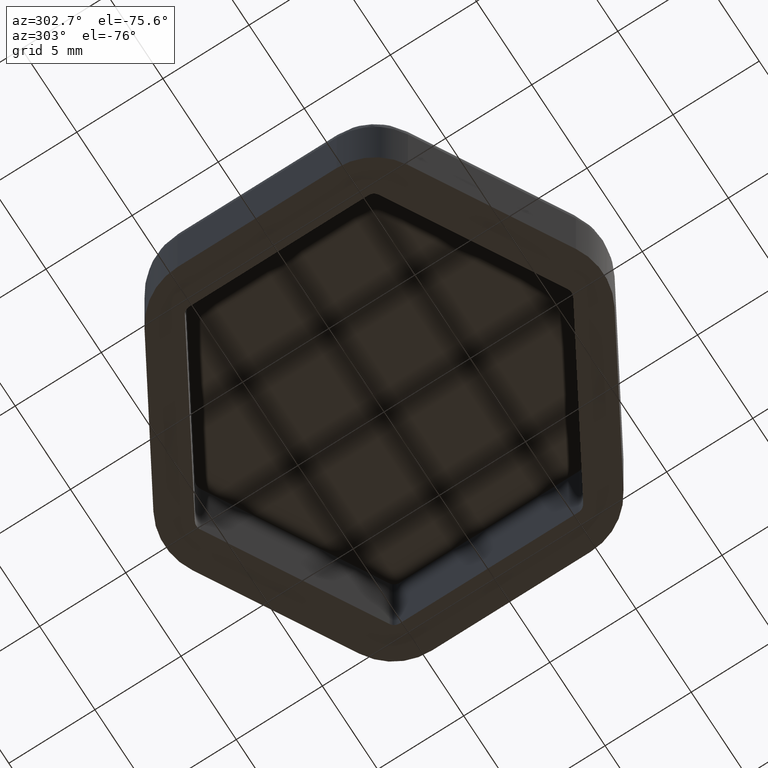
[diagram: clean part render]
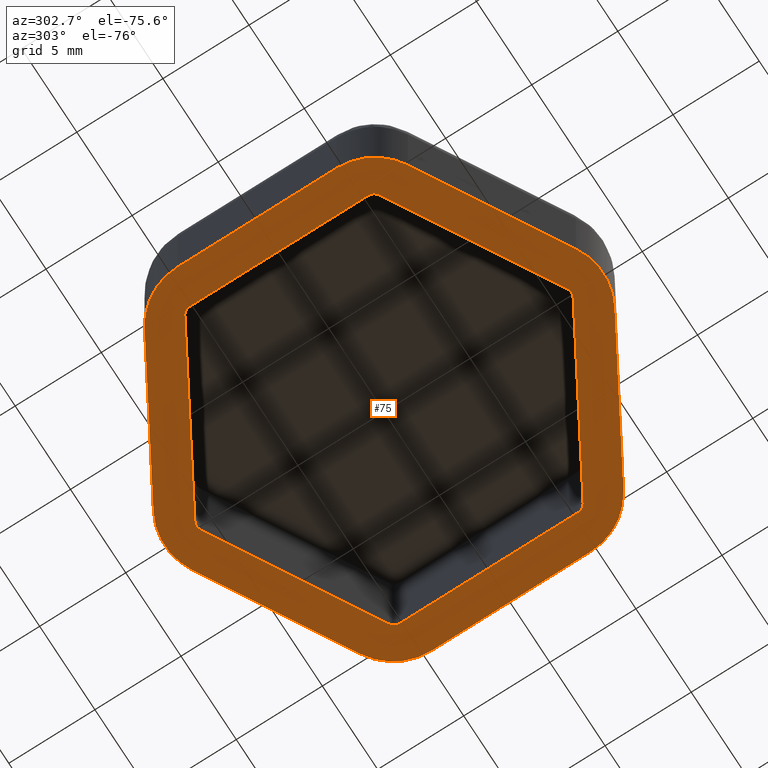
[diagram: same view with one face highlighted and labeled with its STEP entity id]
A machine part, auxiliary view. The second image highlights one B-rep face of the part: STEP entity #75.
In plain terms, the highlighted planar face has unit normal (0, 0, -1).
Its self-contained STEP definition (entity closure, byte-faithful):
#75 = ADVANCED_FACE( '', ( #115, #116 ), #117, .T. );
#115 = FACE_OUTER_BOUND( '', #194, .T. );
#116 = FACE_BOUND( '', #195, .T. );
#117 = PLANE( '', #196 );
#194 = EDGE_LOOP( '', ( #957, #958, #959, #960, #961, #962, #963, #964, #965, #966, #967, #968 ) );
#195 = EDGE_LOOP( '', ( #969, #970, #971, #972, #973, #974, #975, #976, #977, #978, #979, #980 ) );
#196 = AXIS2_PLACEMENT_3D( '', #981, #982, #983 );
#957 = ORIENTED_EDGE( '', *, *, #1236, .T. );
#958 = ORIENTED_EDGE( '', *, *, #1237, .T. );
#959 = ORIENTED_EDGE( '', *, *, #1238, .T. );
#960 = ORIENTED_EDGE( '', *, *, #1239, .T. );
#961 = ORIENTED_EDGE( '', *, *, #1240, .T. );
#962 = ORIENTED_EDGE( '', *, *, #1241, .T. );
#963 = ORIENTED_EDGE( '', *, *, #1242, .T. );
#964 = ORIENTED_EDGE( '', *, *, #1243, .T. );
#965 = ORIENTED_EDGE( '', *, *, #1244, .T. );
#966 = ORIENTED_EDGE( '', *, *, #1245, .T. );
#967 = ORIENTED_EDGE( '', *, *, #1246, .T. );
#968 = ORIENTED_EDGE( '', *, *, #1247, .T. );
#969 = ORIENTED_EDGE( '', *, *, #1248, .T. );
#970 = ORIENTED_EDGE( '', *, *, #1249, .T. );
#971 = ORIENTED_EDGE( '', *, *, #1250, .T. );
#972 = ORIENTED_EDGE( '', *, *, #1251, .T. );
#973 = ORIENTED_EDGE( '', *, *, #1252, .T. );
#974 = ORIENTED_EDGE( '', *, *, #1253, .T. );
#975 = ORIENTED_EDGE( '', *, *, #1254, .T. );
#976 = ORIENTED_EDGE( '', *, *, #1255, .T. );
#977 = ORIENTED_EDGE( '', *, *, #1256, .T. );
#978 = ORIENTED_EDGE( '', *, *, #1257, .T. );
#979 = ORIENTED_EDGE( '', *, *, #1258, .T. );
#980 = ORIENTED_EDGE( '', *, *, #1259, .T. );
#981 = CARTESIAN_POINT( '', ( -8.00000000000000, 4.61880215351701, -9.79685083057902E-016 ) );
#982 = DIRECTION( '', ( 1.22460635382238E-016, 6.46234853557054E-033, -1.00000000000000 ) );
#983 = DIRECTION( '', ( -0.500000000000000, 0.866025403784439, -6.12303176911189E-017 ) );
#1236 = EDGE_CURVE( '', #1326, #1327, #1328, .T. );
#1237 = EDGE_CURVE( '', #1327, #1329, #1330, .T. );
#1238 = EDGE_CURVE( '', #1329, #1331, #1332, .T. );
#1239 = EDGE_CURVE( '', #1331, #1333, #1334, .T. );
#1240 = EDGE_CURVE( '', #1333, #1335, #1336, .T. );
#1241 = EDGE_CURVE( '', #1335, #1337, #1338, .T. );
#1242 = EDGE_CURVE( '', #1337, #1339, #1340, .T. );
#1243 = EDGE_CURVE( '', #1339, #1341, #1342, .T. );
#1244 = EDGE_CURVE( '', #1341, #1343, #1344, .T. );
#1245 = EDGE_CURVE( '', #1343, #1345, #1346, .T. );
#1246 = EDGE_CURVE( '', #1345, #1347, #1348, .T. );
#1247 = EDGE_CURVE( '', #1347, #1326, #1349, .T. );
#1248 = EDGE_CURVE( '', #1350, #1351, #1352, .T. );
#1249 = EDGE_CURVE( '', #1351, #1353, #1354, .F. );
#1250 = EDGE_CURVE( '', #1353, #1355, #1356, .T. );
#1251 = EDGE_CURVE( '', #1355, #1357, #1358, .F. );
#1252 = EDGE_CURVE( '', #1357, #1359, #1360, .T. );
#1253 = EDGE_CURVE( '', #1359, #1361, #1362, .F. );
#1254 = EDGE_CURVE( '', #1361, #1363, #1364, .T. );
#1255 = EDGE_CURVE( '', #1363, #1365, #1366, .F. );
#1256 = EDGE_CURVE( '', #1365, #1367, #1368, .T. );
#1257 = EDGE_CURVE( '', #1367, #1369, #1370, .F. );
#1258 = EDGE_CURVE( '', #1369, #1371, #1372, .T. );
#1259 = EDGE_CURVE( '', #1371, #1350, #1373, .F. );
#1326 = VERTEX_POINT( '', #1470 );
#1327 = VERTEX_POINT( '', #1471 );
#1328 = CIRCLE( '', #1472, 3.50000000000000 );
#1329 = VERTEX_POINT( '', #1473 );
#1330 = LINE( '', #1474, #1475 );
#1331 = VERTEX_POINT( '', #1476 );
#1332 = CIRCLE( '', #1477, 3.50000000000000 );
#1333 = VERTEX_POINT( '', #1478 );
#1334 = LINE( '', #1479, #1480 );
#1335 = VERTEX_POINT( '', #1481 );
#1336 = CIRCLE( '', #1482, 3.50000000000000 );
#1337 = VERTEX_POINT( '', #1483 );
#1338 = LINE( '', #1484, #1485 );
#1339 = VERTEX_POINT( '', #1486 );
#1340 = CIRCLE( '', #1487, 3.50000000000000 );
#1341 = VERTEX_POINT( '', #1488 );
#1342 = LINE( '', #1489, #1490 );
#1343 = VERTEX_POINT( '', #1491 );
#1344 = CIRCLE( '', #1492, 3.50000000000000 );
#1345 = VERTEX_POINT( '', #1493 );
#1346 = LINE( '', #1494, #1495 );
#1347 = VERTEX_POINT( '', #1496 );
#1348 = CIRCLE( '', #1497, 3.50000000000000 );
#1349 = LINE( '', #1498, #1499 );
#1350 = VERTEX_POINT( '', #1500 );
#1351 = VERTEX_POINT( '', #1501 );
#1352 = LINE( '', #1502, #1503 );
#1353 = VERTEX_POINT( '', #1504 );
#1354 = CIRCLE( '', #1505, 0.500000000000002 );
#1355 = VERTEX_POINT( '', #1506 );
#1356 = LINE( '', #1507, #1508 );
#1357 = VERTEX_POINT( '', #1509 );
#1358 = CIRCLE( '', #1510, 0.500000000000002 );
#1359 = VERTEX_POINT( '', #1511 );
#1360 = LINE( '', #1512, #1513 );
#1361 = VERTEX_POINT( '', #1514 );
#1362 = CIRCLE( '', #1515, 0.500000000000000 );
#1363 = VERTEX_POINT( '', #1516 );
#1364 = LINE( '', #1517, #1518 );
#1365 = VERTEX_POINT( '', #1519 );
#1366 = CIRCLE( '', #1520, 0.499999999999999 );
#1367 = VERTEX_POINT( '', #1521 );
#1368 = LINE( '', #1522, #1523 );
#1369 = VERTEX_POINT( '', #1524 );
#1370 = CIRCLE( '', #1525, 0.499999999999999 );
#1371 = VERTEX_POINT( '', #1526 );
#1372 = LINE( '', #1527, #1528 );
#1373 = CIRCLE( '', #1529, 0.499999999999999 );
#1470 = CARTESIAN_POINT( '', ( -11.5000000000000, 4.61880215351701, -1.40829730689573E-015 ) );
#1471 = CARTESIAN_POINT( '', ( -9.75000000000000, 7.64989106676254, -1.19399119497682E-015 ) );
#1472 = AXIS2_PLACEMENT_3D( '', #1668, #1669, #1670 );
#1473 = CARTESIAN_POINT( '', ( -1.75000000000000, 12.2686932202795, -2.14306111918916E-016 ) );
#1474 = CARTESIAN_POINT( '', ( -9.75000000000000, 7.64989106676254, -1.19399119497682E-015 ) );
#1475 = VECTOR( '', #1671, 1000.00000000000 );
#1476 = CARTESIAN_POINT( '', ( 1.74999999999999, 12.2686932202796, 2.14306111918915E-016 ) );
#1477 = AXIS2_PLACEMENT_3D( '', #1672, #1673, #1674 );
#1478 = CARTESIAN_POINT( '', ( 9.74999999999999, 7.64989106676255, 1.19399119497682E-015 ) );
#1479 = CARTESIAN_POINT( '', ( 1.75000000000000, 12.2686932202796, 2.14306111918916E-016 ) );
#1480 = VECTOR( '', #1675, 1000.00000000000 );
#1481 = CARTESIAN_POINT( '', ( 11.5000000000000, 4.61880215351701, 1.40829730689573E-015 ) );
#1482 = AXIS2_PLACEMENT_3D( '', #1676, #1677, #1678 );
#1483 = CARTESIAN_POINT( '', ( 11.5000000000000, -4.61880215351699, 1.40829730689573E-015 ) );
#1484 = CARTESIAN_POINT( '', ( 11.5000000000000, 4.61880215351701, 1.40829730689573E-015 ) );
#1485 = VECTOR( '', #1679, 1000.00000000000 );
#1486 = CARTESIAN_POINT( '', ( 9.74999999999999, -7.64989106676253, 1.19399119497682E-015 ) );
#1487 = AXIS2_PLACEMENT_3D( '', #1680, #1681, #1682 );
#1488 = CARTESIAN_POINT( '', ( 1.74999999999999, -12.2686932202795, 2.14306111918915E-016 ) );
#1489 = CARTESIAN_POINT( '', ( 9.74999999999999, -7.64989106676253, 1.19399119497682E-015 ) );
#1490 = VECTOR( '', #1683, 1000.00000000000 );
#1491 = CARTESIAN_POINT( '', ( -1.75000000000000, -12.2686932202795, -2.14306111918916E-016 ) );
#1492 = AXIS2_PLACEMENT_3D( '', #1684, #1685, #1686 );
#1493 = CARTESIAN_POINT( '', ( -9.75000000000001, -7.64989106676254, -1.19399119497682E-015 ) );
#1494 = CARTESIAN_POINT( '', ( -1.75000000000001, -12.2686932202795, -2.14306111918917E-016 ) );
#1495 = VECTOR( '', #1687, 1000.00000000000 );
#1496 = CARTESIAN_POINT( '', ( -11.5000000000000, -4.61880215351700, -1.40829730689573E-015 ) );
#1497 = AXIS2_PLACEMENT_3D( '', #1688, #1689, #1690 );
#1498 = CARTESIAN_POINT( '', ( -11.5000000000000, -4.61880215351700, -1.40829730689573E-015 ) );
#1499 = VECTOR( '', #1691, 1000.00000000000 );
#1500 = CARTESIAN_POINT( '', ( -0.250000000000000, 10.8253175473055, -3.06151588455595E-017 ) );
#1501 = CARTESIAN_POINT( '', ( -9.25000000000000, 5.62916512459885, -1.13276087728570E-015 ) );
#1502 = CARTESIAN_POINT( '', ( -8.75000000000000, 5.91784025919367, -1.07153055959458E-015 ) );
#1503 = VECTOR( '', #1692, 1000.00000000000 );
#1504 = CARTESIAN_POINT( '', ( -9.50000000000000, 5.19615242270664, -1.16337603613126E-015 ) );
#1505 = AXIS2_PLACEMENT_3D( '', #1693, #1694, #1695 );
#1506 = CARTESIAN_POINT( '', ( -9.50000000000000, -5.19615242270663, -1.16337603613126E-015 ) );
#1507 = CARTESIAN_POINT( '', ( -9.50000000000000, 4.61880215351701, -1.16337603613126E-015 ) );
#1508 = VECTOR( '', #1696, 1000.00000000000 );
#1509 = CARTESIAN_POINT( '', ( -9.25000000000000, -5.62916512459886, -1.13276087728570E-015 ) );
#1510 = AXIS2_PLACEMENT_3D( '', #1697, #1698, #1699 );
#1511 = CARTESIAN_POINT( '', ( -0.249999999999999, -10.8253175473055, -3.06151588455592E-017 ) );
#1512 = CARTESIAN_POINT( '', ( -12.7500000000000, -3.60843918243517, -1.56137310112353E-015 ) );
#1513 = VECTOR( '', #1700, 1000.00000000000 );
#1514 = CARTESIAN_POINT( '', ( 0.250000000000005, -10.8253175473055, 3.06151588455601E-017 ) );
#1515 = AXIS2_PLACEMENT_3D( '', #1701, #1702, #1703 );
#1516 = CARTESIAN_POINT( '', ( 9.25000000000000, -5.62916512459885, 1.13276087728570E-015 ) );
#1517 = CARTESIAN_POINT( '', ( 0.750000000000001, -10.5366424127107, 9.18454765366784E-017 ) );
#1518 = VECTOR( '', #1704, 1000.00000000000 );
#1519 = CARTESIAN_POINT( '', ( 9.50000000000000, -5.19615242270663, 1.16337603613126E-015 ) );
#1520 = AXIS2_PLACEMENT_3D( '', #1705, #1706, #1707 );
#1521 = CARTESIAN_POINT( '', ( 9.50000000000000, 5.19615242270663, 1.16337603613126E-015 ) );
#1522 = CARTESIAN_POINT( '', ( 9.50000000000000, 4.61880215351701, 1.16337603613126E-015 ) );
#1523 = VECTOR( '', #1708, 1000.00000000000 );
#1524 = CARTESIAN_POINT( '', ( 9.25000000000000, 5.62916512459885, 1.13276087728570E-015 ) );
#1525 = AXIS2_PLACEMENT_3D( '', #1709, #1710, #1711 );
#1526 = CARTESIAN_POINT( '', ( 0.250000000000000, 10.8253175473055, 3.06151588455595E-017 ) );
#1527 = CARTESIAN_POINT( '', ( -3.25000000000001, 12.8460434894692, -3.97997064992273E-016 ) );
#1528 = VECTOR( '', #1712, 1000.00000000000 );
#1529 = AXIS2_PLACEMENT_3D( '', #1713, #1714, #1715 );
#1668 = CARTESIAN_POINT( '', ( -8.00000000000000, 4.61880215351701, -9.79685083057902E-016 ) );
#1669 = DIRECTION( '', ( 1.22460635382238E-016, 0.000000000000000, -1.00000000000000 ) );
#1670 = DIRECTION( '', ( -1.00000000000000, -5.55111512312578E-016, -1.22460635382238E-016 ) );
#1671 = DIRECTION( '', ( 0.866025403784439, 0.500000000000000, 1.06054021204601E-016 ) );
#1672 = CARTESIAN_POINT( '', ( -3.46944695195361E-015, 9.23760430703402, -4.24870678161208E-031 ) );
#1673 = DIRECTION( '', ( 1.22460635382238E-016, -8.04960107368382E-033, -1.00000000000000 ) );
#1674 = DIRECTION( '', ( -0.500000000000000, 0.866025403784439, -6.12303176911189E-017 ) );
#1675 = DIRECTION( '', ( 0.866025403784439, -0.500000000000000, 1.06054021204601E-016 ) );
#1676 = CARTESIAN_POINT( '', ( 8.00000000000000, 4.61880215351702, 9.79685083057901E-016 ) );
#1677 = DIRECTION( '', ( 1.22460635382238E-016, -8.04960107368379E-033, -1.00000000000000 ) );
#1678 = DIRECTION( '', ( 0.500000000000001, 0.866025403784438, 6.12303176911190E-017 ) );
#1679 = DIRECTION( '', ( -3.88578058618805E-016, -1.00000000000000, -4.75855159540553E-032 ) );
#1680 = CARTESIAN_POINT( '', ( 7.99999999999999, -4.61880215351699, 9.79685083057901E-016 ) );
#1681 = DIRECTION( '', ( 1.22460635382238E-016, 0.000000000000000, -1.00000000000000 ) );
#1682 = DIRECTION( '', ( 1.00000000000000, 0.000000000000000, 1.22460635382238E-016 ) );
#1683 = DIRECTION( '', ( -0.866025403784439, -0.500000000000000, -1.06054021204601E-016 ) );
#1684 = CARTESIAN_POINT( '', ( -6.93889390390723E-015, -9.23760430703400, -8.49741356322415E-031 ) );
#1685 = DIRECTION( '', ( 1.22460635382238E-016, 0.000000000000000, -1.00000000000000 ) );
#1686 = DIRECTION( '', ( 0.500000000000001, -0.866025403784438, 6.12303176911189E-017 ) );
#1687 = DIRECTION( '', ( -0.866025403784439, 0.499999999999999, -1.06054021204601E-016 ) );
#1688 = CARTESIAN_POINT( '', ( -8.00000000000000, -4.61880215351700, -9.79685083057902E-016 ) );
#1689 = DIRECTION( '', ( 1.22460635382238E-016, 0.000000000000000, -1.00000000000000 ) );
#1690 = DIRECTION( '', ( -0.500000000000000, -0.866025403784439, -6.12303176911189E-017 ) );
#1691 = DIRECTION( '', ( -5.55111512312578E-017, 1.00000000000000, -6.79793085057932E-033 ) );
#1692 = DIRECTION( '', ( -0.866025403784439, -0.500000000000000, -1.06054021204601E-016 ) );
#1693 = CARTESIAN_POINT( '', ( -9.00000000000000, 5.19615242270663, -1.10214571844014E-015 ) );
#1694 = DIRECTION( '', ( 1.22460635382238E-016, 0.000000000000000, -1.00000000000000 ) );
#1695 = DIRECTION( '', ( -1.00000000000000, 0.000000000000000, -1.22460635382238E-016 ) );
#1696 = DIRECTION( '', ( 3.88578058618805E-016, -1.00000000000000, 4.75855159540552E-032 ) );
#1697 = CARTESIAN_POINT( '', ( -9.00000000000000, -5.19615242270664, -1.10214571844014E-015 ) );
#1698 = DIRECTION( '', ( 1.22460635382238E-016, 0.000000000000000, -1.00000000000000 ) );
#1699 = DIRECTION( '', ( -1.00000000000000, 0.000000000000000, -1.22460635382238E-016 ) );
#1700 = DIRECTION( '', ( 0.866025403784439, -0.500000000000000, 1.06054021204601E-016 ) );
#1701 = CARTESIAN_POINT( '', ( 1.73472347597681E-015, -10.3923048454133, 2.12435339080604E-031 ) );
#1702 = DIRECTION( '', ( 1.22460635382238E-016, 0.000000000000000, -1.00000000000000 ) );
#1703 = DIRECTION( '', ( -1.00000000000000, 0.000000000000000, -1.22460635382238E-016 ) );
#1704 = DIRECTION( '', ( 0.866025403784439, 0.500000000000000, 1.06054021204601E-016 ) );
#1705 = CARTESIAN_POINT( '', ( 9.00000000000000, -5.19615242270663, 1.10214571844014E-015 ) );
#1706 = DIRECTION( '', ( 1.22460635382238E-016, 0.000000000000000, -1.00000000000000 ) );
#1707 = DIRECTION( '', ( -1.00000000000000, 0.000000000000000, -1.22460635382238E-016 ) );
#1708 = DIRECTION( '', ( 5.55111512312578E-017, 1.00000000000000, 6.79793085057932E-033 ) );
#1709 = CARTESIAN_POINT( '', ( 9.00000000000000, 5.19615242270663, 1.10214571844014E-015 ) );
#1710 = DIRECTION( '', ( 1.22460635382238E-016, 0.000000000000000, -1.00000000000000 ) );
#1711 = DIRECTION( '', ( -1.00000000000000, 0.000000000000000, -1.22460635382238E-016 ) );
#1712 = DIRECTION( '', ( -0.866025403784439, 0.500000000000000, -1.06054021204601E-016 ) );
#1713 = CARTESIAN_POINT( '', ( 0.000000000000000, 10.3923048454133, 0.000000000000000 ) );
#1714 = DIRECTION( '', ( 1.22460635382238E-016, 0.000000000000000, -1.00000000000000 ) );
#1715 = DIRECTION( '', ( -1.00000000000000, 0.000000000000000, -1.22460635382238E-016 ) );